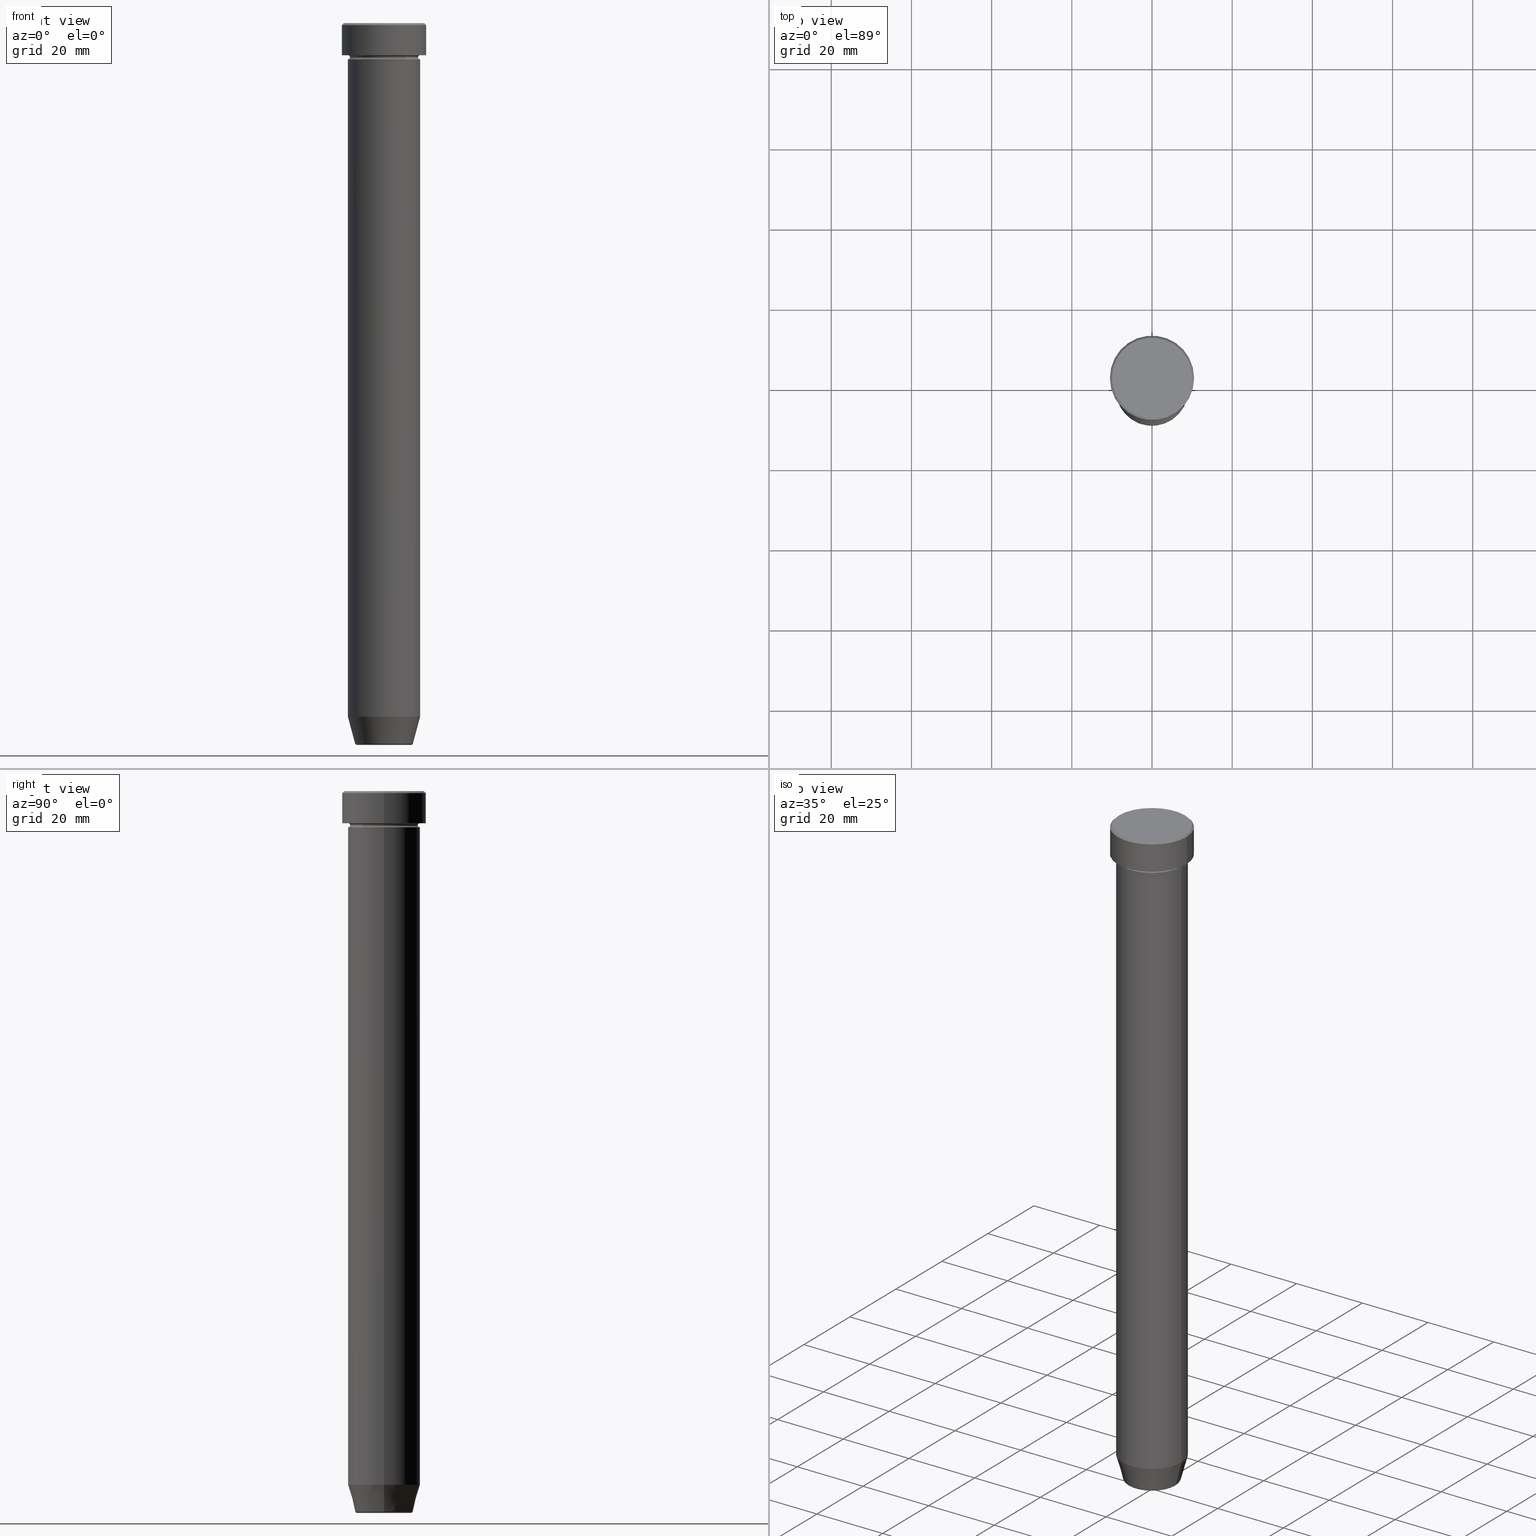
[diagram: canonical four-view strip — front | top / right | iso, engineering-drawing reading convention]
A machine part, canonical four-view strip (front | top / right | iso — engineering-drawing reading convention). The complete STEP part file that produces these views, byte-faithful:
ISO-10303-21;
HEADER;
FILE_DESCRIPTION (( 'STEP AP203' ),
    '1' );
FILE_NAME ('91e3.STEP',
    '2024-01-02T22:06:49',
    ( '' ),
    ( '' ),
    'SwSTEP 2.0',
    'SolidWorks 2019',
    '' );
FILE_SCHEMA (( 'CONFIG_CONTROL_DESIGN' ));
ENDSEC;

DATA;
#1 = DIRECTION ( 'NONE',  ( 1.000000000000000000, 0.000000000000000000, 0.000000000000000000 ) ) ;
#2 = ADVANCED_FACE ( 'NONE', ( #297, #351 ), #529, .T. ) ;
#3 = CARTESIAN_POINT ( 'NONE',  ( -9.000000000000000000, 1.102182119232617714E-15, 0.000000000000000000 ) ) ;
#4 = AXIS2_PLACEMENT_3D ( 'NONE', #62, #251, #572 ) ;
#5 = LINE ( 'NONE', #381, #137 ) ;
#6 = CIRCLE ( 'NONE', #543, 9.000000000000000000 ) ;
#7 = CIRCLE ( 'NONE', #123, 9.000000000000000000 ) ;
#8 = ORIENTED_EDGE ( 'NONE', *, *, #559, .T. ) ;
#9 = DIRECTION ( 'NONE',  ( 0.2588190451025210725, 0.000000000000000000, 0.9659258262890680902 ) ) ;
#10 = DIRECTION ( 'NONE',  ( -0.000000000000000000, -0.000000000000000000, 1.000000000000000000 ) ) ;
#11 = ORIENTED_EDGE ( 'NONE', *, *, #156, .T. ) ;
#12 = VERTEX_POINT ( 'NONE', #341 ) ;
#13 = CARTESIAN_POINT ( 'NONE',  ( 0.000000000000000000, 0.000000000000000000, -8.500000000000000000 ) ) ;
#14 = ORIENTED_EDGE ( 'NONE', *, *, #277, .F. ) ;
#15 = AXIS2_PLACEMENT_3D ( 'NONE', #329, #417, #228 ) ;
#16 = APPROVAL_PERSON_ORGANIZATION ( #19, #561, #579 ) ;
#17 = CARTESIAN_POINT ( 'NONE',  ( 0.000000000000000000, 0.000000000000000000, -173.0000000000000000 ) ) ;
#18 = ORIENTED_EDGE ( 'NONE', *, *, #135, .T. ) ;
#19 = PERSON_AND_ORGANIZATION ( #51, #366 ) ;
#20 = CARTESIAN_POINT ( 'NONE',  ( 0.000000000000000000, 0.000000000000000000, -179.6294095225512706 ) ) ;
#21 = EDGE_LOOP ( 'NONE', ( #230, #157, #581, #30 ) ) ;
#22 = APPLICATION_PROTOCOL_DEFINITION ( 'international standard', 'config_control_design', 1994, #520 ) ;
#23 = EDGE_CURVE ( 'NONE', #335, #136, #325, .T. ) ;
#24 = EDGE_LOOP ( 'NONE', ( #41, #34, #46, #152 ) ) ;
#25 = CARTESIAN_POINT ( 'NONE',  ( -9.000000000000000000, 1.102182119232617714E-15, -22.00000000000000000 ) ) ;
#26 = MANIFOLD_SOLID_BREP ( 'Zkosen�1', #398 ) ;
#27 = CIRCLE ( 'NONE', #265, 10.50000000000000000 ) ;
#28 = CIRCLE ( 'NONE', #224, 9.000000000000000000 ) ;
#29 = APPROVAL_DATE_TIME ( #124, #561 ) ;
#30 = ORIENTED_EDGE ( 'NONE', *, *, #576, .F. ) ;
#31 = DIRECTION ( 'NONE',  ( 0.000000000000000000, 0.000000000000000000, -1.000000000000000000 ) ) ;
#32 = DIRECTION ( 'NONE',  ( -0.000000000000000000, -0.000000000000000000, 1.000000000000000000 ) ) ;
#33 =( NAMED_UNIT ( * ) SI_UNIT ( $, .STERADIAN. ) SOLID_ANGLE_UNIT ( ) );
#34 = ORIENTED_EDGE ( 'NONE', *, *, #451, .T. ) ;
#35 = CARTESIAN_POINT ( 'NONE',  ( 9.000000000000000000, 0.000000000000000000, -9.000000000000001776 ) ) ;
#36 = CONICAL_SURFACE ( 'NONE', #456, 10.00000000000000178, 0.7853981633974447263 ) ;
#37 = CIRCLE ( 'NONE', #378, 7.223655072137189492 ) ;
#38 = SECURITY_CLASSIFICATION ( '', '', #586 ) ;
#39 = PLANE ( 'NONE',  #180 ) ;
#40 = AXIS2_PLACEMENT_3D ( 'NONE', #199, #486, #524 ) ;
#41 = ORIENTED_EDGE ( 'NONE', *, *, #23, .F. ) ;
#42 = DIRECTION ( 'NONE',  ( 0.000000000000000000, -0.000000000000000000, 1.000000000000000000 ) ) ;
#43 = CARTESIAN_POINT ( 'NONE',  ( 10.00000000000000178, 1.224646799147353454E-15, 0.000000000000000000 ) ) ;
#44 = EDGE_CURVE ( 'NONE', #229, #470, #293, .T. ) ;
#45 = ORIENTED_EDGE ( 'NONE', *, *, #263, .F. ) ;
#46 = ORIENTED_EDGE ( 'NONE', *, *, #517, .T. ) ;
#47 = VERTEX_POINT ( 'NONE', #384 ) ;
#48 = CARTESIAN_POINT ( 'NONE',  ( 0.000000000000000000, 0.000000000000000000, -22.00000000000000000 ) ) ;
#49 = AXIS2_PLACEMENT_3D ( 'NONE', #338, #515, #391 ) ;
#50 = APPROVAL ( #262, 'NEUR�EN�' ) ;
#51 = PERSON ( 'NEUR�EN�', 'NEUR�EN�', 'NEUR�EN�', ('NEUR�EN�'), ('NEUR�EN�'), ('NEUR�EN�') ) ;
#52 = DIRECTION ( 'NONE',  ( -0.000000000000000000, -0.000000000000000000, 1.000000000000000000 ) ) ;
#53 = ORIENTED_EDGE ( 'NONE', *, *, #347, .T. ) ;
#54 = DIRECTION ( 'NONE',  ( 1.000000000000000000, 0.000000000000000000, 0.000000000000000000 ) ) ;
#55 = CARTESIAN_POINT ( 'NONE',  ( 7.124355652982136355, 0.000000000000000000, -180.0000000000000000 ) ) ;
#56 = TOROIDAL_SURFACE ( 'NONE', #446, 9.000000000000000000, 0.5000000000000000000 ) ;
#57 = EDGE_LOOP ( 'NONE', ( #394, #109, #440, #235 ) ) ;
#58 = AXIS2_PLACEMENT_3D ( 'NONE', #256, #518, #292 ) ;
#59 = AXIS2_PLACEMENT_3D ( 'NONE', #154, #65, #345 ) ;
#60 = ORIENTED_EDGE ( 'NONE', *, *, #513, .T. ) ;
#61 = CARTESIAN_POINT ( 'NONE',  ( 10.50000000000000000, 0.000000000000000000, -8.000000000000000000 ) ) ;
#62 = CARTESIAN_POINT ( 'NONE',  ( 0.000000000000000000, 0.000000000000000000, -8.500000000000000000 ) ) ;
#63 = DIRECTION ( 'NONE',  ( 1.000000000000000000, 0.000000000000000000, 0.000000000000000000 ) ) ;
#64 = EDGE_CURVE ( 'NONE', #47, #161, #248, .T. ) ;
#65 = DIRECTION ( 'NONE',  ( -0.000000000000000000, -0.000000000000000000, 1.000000000000000000 ) ) ;
#66 = CARTESIAN_POINT ( 'NONE',  ( 0.000000000000000000, 0.000000000000000000, -9.000000000000001776 ) ) ;
#67 = ORIENTED_EDGE ( 'NONE', *, *, #423, .F. ) ;
#68 = AXIS2_PLACEMENT_3D ( 'NONE', #134, #233, #424 ) ;
#69 = AXIS2_PLACEMENT_3D ( 'NONE', #318, #497, #541 ) ;
#70 = ORIENTED_EDGE ( 'NONE', *, *, #238, .T. ) ;
#71 = CIRCLE ( 'NONE', #402, 8.499999999999998224 ) ;
#72 = CARTESIAN_POINT ( 'NONE',  ( 0.000000000000000000, 0.000000000000000000, 0.000000000000000000 ) ) ;
#73 = EDGE_CURVE ( 'NONE', #116, #117, #5, .T. ) ;
#74 = DATE_AND_TIME ( #314, #344 ) ;
#75 = DIRECTION ( 'NONE',  ( -0.000000000000000000, -0.000000000000000000, 1.000000000000000000 ) ) ;
#76 = PRODUCT_DEFINITION ( 'NEZN�M�', '', #181, #358 ) ;
#77 = APPROVAL_STATUS ( 'not_yet_approved' ) ;
#78 = DIRECTION ( 'NONE',  ( 0.000000000000000000, -0.000000000000000000, 1.000000000000000000 ) ) ;
#79 = AXIS2_PLACEMENT_3D ( 'NONE', #468, #42, #599 ) ;
#80 = CIRCLE ( 'NONE', #457, 9.000000000000000000 ) ;
#81 = DATE_TIME_ROLE ( 'classification_date' ) ;
#82 = CC_DESIGN_APPROVAL ( #50, ( #76 ) ) ;
#83 = DIRECTION ( 'NONE',  ( 0.000000000000000000, 0.000000000000000000, -1.000000000000000000 ) ) ;
#84 = DIRECTION ( 'NONE',  ( -0.2588190451025210725, 3.169619151431769255E-17, 0.9659258262890680902 ) ) ;
#85 = EDGE_CURVE ( 'NONE', #116, #12, #7, .T. ) ;
#86 = CARTESIAN_POINT ( 'NONE',  ( 9.000000000000000000, 0.000000000000000000, 0.000000000000000000 ) ) ;
#87 = CC_DESIGN_PERSON_AND_ORGANIZATION_ASSIGNMENT ( #397, #583, ( #181 ) ) ;
#88 = CIRCLE ( 'NONE', #426, 10.50000000000000000 ) ;
#89 = AXIS2_PLACEMENT_3D ( 'NONE', #523, #201, #389 ) ;
#90 = CARTESIAN_POINT ( 'NONE',  ( 0.000000000000000000, 0.000000000000000000, -22.00000000000000000 ) ) ;
#91 = AXIS2_PLACEMENT_3D ( 'NONE', #132, #448, #31 ) ;
#92 = APPLICATION_CONTEXT ( 'configuration controlled 3d designs of mechanical parts and assemblies' ) ;
#93 = ADVANCED_FACE ( 'NONE', ( #473 ), #217, .F. ) ;
#94 = CARTESIAN_POINT ( 'NONE',  ( 0.000000000000000000, 9.000000000000000000, -22.00000000000000000 ) ) ;
#95 = ORIENTED_EDGE ( 'NONE', *, *, #438, .T. ) ;
#96 = ORIENTED_EDGE ( 'NONE', *, *, #131, .F. ) ;
#97 = CARTESIAN_POINT ( 'NONE',  ( 0.000000000000000000, 0.000000000000000000, -22.00000000000000000 ) ) ;
#98 = ORIENTED_EDGE ( 'NONE', *, *, #567, .F. ) ;
#99 = CARTESIAN_POINT ( 'NONE',  ( 0.000000000000000000, 0.000000000000000000, -22.00000000000000000 ) ) ;
#100 = AXIS2_PLACEMENT_3D ( 'NONE', #48, #52, #370 ) ;
#101 = ADVANCED_FACE ( 'NONE', ( #111 ), #432, .T. ) ;
#102 = VERTEX_POINT ( 'NONE', #390 ) ;
#103 = ORIENTED_EDGE ( 'NONE', *, *, #277, .T. ) ;
#104 = ORIENTED_EDGE ( 'NONE', *, *, #328, .F. ) ;
#105 = CARTESIAN_POINT ( 'NONE',  ( -10.50000000000000000, 1.285879139104720831E-15, 0.000000000000000000 ) ) ;
#106 = CARTESIAN_POINT ( 'NONE',  ( 0.000000000000000000, 0.000000000000000000, 0.000000000000000000 ) ) ;
#107 = DIRECTION ( 'NONE',  ( 1.000000000000000000, 0.000000000000000000, 0.000000000000000000 ) ) ;
#108 = ORIENTED_EDGE ( 'NONE', *, *, #589, .T. ) ;
#109 = ORIENTED_EDGE ( 'NONE', *, *, #328, .T. ) ;
#110 = LINE ( 'NONE', #105, #564 ) ;
#111 = FACE_OUTER_BOUND ( 'NONE', #125, .T. ) ;
#112 = AXIS2_PLACEMENT_3D ( 'NONE', #106, #160, #198 ) ;
#113 = ADVANCED_FACE ( 'NONE', ( #115 ), #482, .T. ) ;
#114 = FACE_OUTER_BOUND ( 'NONE', #399, .T. ) ;
#115 = FACE_OUTER_BOUND ( 'NONE', #333, .T. ) ;
#116 = VERTEX_POINT ( 'NONE', #159 ) ;
#117 = VERTEX_POINT ( 'NONE', #575 ) ;
#118 = DIRECTION ( 'NONE',  ( -0.000000000000000000, -0.000000000000000000, 1.000000000000000000 ) ) ;
#119 = LINE ( 'NONE', #301, #535 ) ;
#120 = PERSON_AND_ORGANIZATION ( #51, #366 ) ;
#121 = ORIENTED_EDGE ( 'NONE', *, *, #371, .T. ) ;
#122 = VECTOR ( 'NONE', #9, 1000.000000000000114 ) ;
#123 = AXIS2_PLACEMENT_3D ( 'NONE', #349, #339, #107 ) ;
#124 = DATE_AND_TIME ( #352, #317 ) ;
#125 = EDGE_LOOP ( 'NONE', ( #527, #273, #67, #193 ) ) ;
#126 = CARTESIAN_POINT ( 'NONE',  ( 0.000000000000000000, 0.000000000000000000, -180.0000000000000000 ) ) ;
#127 = CC_DESIGN_PERSON_AND_ORGANIZATION_ASSIGNMENT ( #166, #218, ( #38 ) ) ;
#128 = FACE_OUTER_BOUND ( 'NONE', #210, .T. ) ;
#129 =( NAMED_UNIT ( * ) PLANE_ANGLE_UNIT ( ) SI_UNIT ( $, .RADIAN. ) );
#130 = CONICAL_SURFACE ( 'NONE', #465, 7.124355652982136355, 0.2617993877991497964 ) ;
#131 = EDGE_CURVE ( 'NONE', #259, #12, #119, .T. ) ;
#132 = CARTESIAN_POINT ( 'NONE',  ( 9.000000000000000000, 0.000000000000000000, -8.500000000000000000 ) ) ;
#133 = DIRECTION ( 'NONE',  ( -1.000000000000000000, -1.224646799147353454E-16, 0.000000000000000000 ) ) ;
#134 = CARTESIAN_POINT ( 'NONE',  ( 0.000000000000000000, 0.000000000000000000, -8.000000000000000000 ) ) ;
#135 = EDGE_CURVE ( 'NONE', #136, #211, #357, .T. ) ;
#136 = VERTEX_POINT ( 'NONE', #496 ) ;
#137 = VECTOR ( 'NONE', #150, 1000.000000000000000 ) ;
#138 = CIRCLE ( 'NONE', #475, 9.000000000000000000 ) ;
#139 = FACE_OUTER_BOUND ( 'NONE', #511, .T. ) ;
#140 = CIRCLE ( 'NONE', #477, 7.223655072137189492 ) ;
#141 = ORIENTED_EDGE ( 'NONE', *, *, #227, .F. ) ;
#142 = ORIENTED_EDGE ( 'NONE', *, *, #64, .T. ) ;
#143 = DIRECTION ( 'NONE',  ( -0.000000000000000000, -0.000000000000000000, 1.000000000000000000 ) ) ;
#144 = DIRECTION ( 'NONE',  ( 0.7071067811865450192, 8.659560562354902043E-17, -0.7071067811865500152 ) ) ;
#145 = DIRECTION ( 'NONE',  ( -1.000000000000000000, 0.000000000000000000, 0.000000000000000000 ) ) ;
#146 = CONICAL_SURFACE ( 'NONE', #316, 7.124355652982136355, 0.2617993877991497964 ) ;
#147 = DIRECTION ( 'NONE',  ( -0.000000000000000000, -0.000000000000000000, 1.000000000000000000 ) ) ;
#148 = VERTEX_POINT ( 'NONE', #268 ) ;
#149 = DIRECTION ( 'NONE',  ( -0.000000000000000000, -1.000000000000000000, -0.000000000000000000 ) ) ;
#150 = DIRECTION ( 'NONE',  ( -0.000000000000000000, -0.000000000000000000, 1.000000000000000000 ) ) ;
#151 = EDGE_CURVE ( 'NONE', #136, #335, #71, .T. ) ;
#152 = ORIENTED_EDGE ( 'NONE', *, *, #135, .F. ) ;
#153 = DIRECTION ( 'NONE',  ( -0.000000000000000000, -0.000000000000000000, 1.000000000000000000 ) ) ;
#154 = CARTESIAN_POINT ( 'NONE',  ( 0.000000000000000000, 0.000000000000000000, 0.000000000000000000 ) ) ;
#155 = TOROIDAL_SURFACE ( 'NONE', #278, 9.000000000000000000, 0.5000000000000000000 ) ;
#156 = EDGE_CURVE ( 'NONE', #102, #148, #353, .T. ) ;
#157 = ORIENTED_EDGE ( 'NONE', *, *, #272, .T. ) ;
#158 = CYLINDRICAL_SURFACE ( 'NONE', #112, 9.000000000000000000 ) ;
#159 = CARTESIAN_POINT ( 'NONE',  ( 9.000000000000000000, 0.000000000000000000, -173.0000000000000000 ) ) ;
#160 = DIRECTION ( 'NONE',  ( -0.000000000000000000, -0.000000000000000000, 1.000000000000000000 ) ) ;
#161 = VERTEX_POINT ( 'NONE', #170 ) ;
#162 = CARTESIAN_POINT ( 'NONE',  ( 0.000000000000000000, 0.000000000000000000, 0.000000000000000000 ) ) ;
#163 = CIRCLE ( 'NONE', #503, 6.740692158992659166 ) ;
#164 = AXIS2_PLACEMENT_3D ( 'NONE', #206, #310, #406 ) ;
#165 = EDGE_LOOP ( 'NONE', ( #285, #53, #103, #205 ) ) ;
#166 = PERSON_AND_ORGANIZATION ( #51, #366 ) ;
#167 = CARTESIAN_POINT ( 'NONE',  ( 0.000000000000000000, 0.000000000000000000, 0.000000000000000000 ) ) ;
#168 = ORIENTED_EDGE ( 'NONE', *, *, #589, .F. ) ;
#169 = CALENDAR_DATE ( 2024, 2, 1 ) ;
#170 = CARTESIAN_POINT ( 'NONE',  ( 10.00000000000000178, 1.255262969126037241E-15, 0.000000000000000000 ) ) ;
#171 = AXIS2_PLACEMENT_3D ( 'NONE', #595, #375, #231 ) ;
#172 = APPROVAL_DATE_TIME ( #74, #50 ) ;
#173 = ORIENTED_EDGE ( 'NONE', *, *, #151, .T. ) ;
#174 = CARTESIAN_POINT ( 'NONE',  ( 9.000000000000000000, 1.102182119232617714E-15, -8.500000000000000000 ) ) ;
#175 = CARTESIAN_POINT ( 'NONE',  ( 9.000000000000000000, 0.000000000000000000, -22.00000000000000000 ) ) ;
#176 = ADVANCED_FACE ( 'NONE', ( #312 ), #395, .T. ) ;
#177 = DIRECTION ( 'NONE',  ( 0.000000000000000000, 0.000000000000000000, -1.000000000000000000 ) ) ;
#178 = AXIS2_PLACEMENT_3D ( 'NONE', #72, #386, #258 ) ;
#179 = EDGE_LOOP ( 'NONE', ( #257, #376, #558, #14 ) ) ;
#180 = AXIS2_PLACEMENT_3D ( 'NONE', #90, #177, #505 ) ;
#181 = PRODUCT_DEFINITION_FORMATION_WITH_SPECIFIED_SOURCE ( 'LIBOVOLN�', '', #405, .NOT_KNOWN. ) ;
#182 = CARTESIAN_POINT ( 'NONE',  ( 0.000000000000000000, 0.000000000000000000, -8.000000000000000000 ) ) ;
#183 = VERTEX_POINT ( 'NONE', #214 ) ;
#184 = CALENDAR_DATE ( 2024, 2, 1 ) ;
#185 = CARTESIAN_POINT ( 'NONE',  ( -9.000000000000000000, 1.102182119232617714E-15, -22.00000000000000000 ) ) ;
#186 = EDGE_CURVE ( 'NONE', #259, #274, #140, .T. ) ;
#187 = ORIENTED_EDGE ( 'NONE', *, *, #451, .F. ) ;
#188 = DIRECTION ( 'NONE',  ( 0.000000000000000000, 0.000000000000000000, -1.000000000000000000 ) ) ;
#189 = ADVANCED_FACE ( 'NONE', ( #546 ), #322, .T. ) ;
#190 = VECTOR ( 'NONE', #453, 1000.000000000000000 ) ;
#191 = DIRECTION ( 'NONE',  ( -0.000000000000000000, -0.000000000000000000, 1.000000000000000000 ) ) ;
#192 = CIRCLE ( 'NONE', #531, 0.5000000000000004441 ) ;
#193 = ORIENTED_EDGE ( 'NONE', *, *, #73, .F. ) ;
#194 = ORIENTED_EDGE ( 'NONE', *, *, #408, .T. ) ;
#195 = DIRECTION ( 'NONE',  ( 1.224646799147353207E-16, 1.000000000000000000, 0.000000000000000000 ) ) ;
#196 = ADVANCED_FACE ( 'NONE', ( #441 ), #36, .T. ) ;
#197 = EDGE_LOOP ( 'NONE', ( #96, #463, #8, #98 ) ) ;
#198 = DIRECTION ( 'NONE',  ( 1.000000000000000000, 0.000000000000000000, 0.000000000000000000 ) ) ;
#199 = CARTESIAN_POINT ( 'NONE',  ( 0.000000000000000000, 10.50000000000000000, -8.000000000000000000 ) ) ;
#200 = ORIENTED_EDGE ( 'NONE', *, *, #513, .F. ) ;
#201 = DIRECTION ( 'NONE',  ( 1.224646799147353207E-16, 1.000000000000000000, 0.000000000000000000 ) ) ;
#202 = DIRECTION ( 'NONE',  ( 1.000000000000000000, 0.000000000000000000, 0.000000000000000000 ) ) ;
#203 = ADVANCED_FACE ( 'NONE', ( #404 ), #56, .F. ) ;
#204 = DIRECTION ( 'NONE',  ( -1.000000000000000000, 1.224646799147353454E-16, 0.000000000000000000 ) ) ;
#205 = ORIENTED_EDGE ( 'NONE', *, *, #517, .F. ) ;
#206 = CARTESIAN_POINT ( 'NONE',  ( 0.000000000000000000, 0.000000000000000000, -179.5000000000000000 ) ) ;
#207 = DIRECTION ( 'NONE',  ( -1.000000000000000000, 0.000000000000000000, 0.000000000000000000 ) ) ;
#208 = ORIENTED_EDGE ( 'NONE', *, *, #371, .F. ) ;
#209 = UNCERTAINTY_MEASURE_WITH_UNIT (LENGTH_MEASURE( 1.000000000000000082E-05 ), #306, 'distance_accuracy_value', 'NONE');
#210 = EDGE_LOOP ( 'NONE', ( #537, #173, #540, #382 ) ) ;
#211 = VERTEX_POINT ( 'NONE', #35 ) ;
#212 = PERSON_AND_ORGANIZATION ( #51, #366 ) ;
#213 = EDGE_LOOP ( 'NONE', ( #104, #321, #514, #208 ) ) ;
#214 = CARTESIAN_POINT ( 'NONE',  ( -10.50000000000000000, 1.285879139104720831E-15, -8.000000000000000000 ) ) ;
#215 = TOROIDAL_SURFACE ( 'NONE', #372, 9.000000000000000000, 0.5000000000000000000 ) ;
#216 = CIRCLE ( 'NONE', #234, 0.5000000000000004441 ) ;
#217 = TOROIDAL_SURFACE ( 'NONE', #4, 9.000000000000000000, 0.5000000000000000000 ) ;
#218 = PERSON_AND_ORGANIZATION_ROLE ( 'classification_officer' ) ;
#219 = DIRECTION ( 'NONE',  ( -0.000000000000000000, -0.000000000000000000, 1.000000000000000000 ) ) ;
#220 = PRODUCT_DEFINITION_SHAPE ( 'NONE', 'NONE',  #76 ) ;
#221 = APPROVAL_ROLE ( '' ) ;
#222 = CARTESIAN_POINT ( 'NONE',  ( 0.000000000000000000, 0.000000000000000000, -0.5000000000000023315 ) ) ;
#223 = DIRECTION ( 'NONE',  ( 1.000000000000000000, 0.000000000000000000, 0.000000000000000000 ) ) ;
#224 = AXIS2_PLACEMENT_3D ( 'NONE', #245, #153, #249 ) ;
#225 = CC_DESIGN_SECURITY_CLASSIFICATION ( #38, ( #181 ) ) ;
#226 = MANIFOLD_SOLID_BREP ( 'Zaoblit4', #582 ) ;
#227 = EDGE_CURVE ( 'NONE', #556, #416, #409, .T. ) ;
#228 = DIRECTION ( 'NONE',  ( -1.000000000000000000, 0.000000000000000000, 0.000000000000000000 ) ) ;
#229 = VERTEX_POINT ( 'NONE', #25 ) ;
#230 = ORIENTED_EDGE ( 'NONE', *, *, #23, .T. ) ;
#231 = DIRECTION ( 'NONE',  ( 0.000000000000000000, 0.000000000000000000, -1.000000000000000000 ) ) ;
#232 = ORIENTED_EDGE ( 'NONE', *, *, #567, .T. ) ;
#233 = DIRECTION ( 'NONE',  ( -0.000000000000000000, -0.000000000000000000, 1.000000000000000000 ) ) ;
#234 = AXIS2_PLACEMENT_3D ( 'NONE', #336, #195, #204 ) ;
#235 = ORIENTED_EDGE ( 'NONE', *, *, #291, .F. ) ;
#236 = EDGE_LOOP ( 'NONE', ( #241, #60, #70, #141 ) ) ;
#237 = FACE_OUTER_BOUND ( 'NONE', #270, .T. ) ;
#238 = EDGE_CURVE ( 'NONE', #392, #416, #88, .T. ) ;
#239 = CARTESIAN_POINT ( 'NONE',  ( -9.000000000000000000, 0.000000000000000000, -8.000000000000000000 ) ) ;
#240 = ORIENTED_EDGE ( 'NONE', *, *, #227, .T. ) ;
#241 = ORIENTED_EDGE ( 'NONE', *, *, #288, .T. ) ;
#242 = DIRECTION ( 'NONE',  ( 1.000000000000000000, 0.000000000000000000, 0.000000000000000000 ) ) ;
#243 = EDGE_CURVE ( 'NONE', #307, #117, #276, .T. ) ;
#244 = CIRCLE ( 'NONE', #474, 0.5000000000000004441 ) ;
#245 = CARTESIAN_POINT ( 'NONE',  ( 0.000000000000000000, 0.000000000000000000, -9.000000000000001776 ) ) ;
#246 = CIRCLE ( 'NONE', #100, 9.000000000000000000 ) ;
#247 = ORIENTED_EDGE ( 'NONE', *, *, #509, .F. ) ;
#248 = CIRCLE ( 'NONE', #178, 10.00000000000000178 ) ;
#249 = DIRECTION ( 'NONE',  ( 1.000000000000000000, 0.000000000000000000, 0.000000000000000000 ) ) ;
#250 = CC_DESIGN_PERSON_AND_ORGANIZATION_ASSIGNMENT ( #212, #260, ( #181 ) ) ;
#251 = DIRECTION ( 'NONE',  ( -0.000000000000000000, -0.000000000000000000, 1.000000000000000000 ) ) ;
#252 = ADVANCED_BREP_SHAPE_REPRESENTATION ( '91e3', ( #26, #226, #69 ), #266 ) ;
#253 = ORIENTED_EDGE ( 'NONE', *, *, #243, .F. ) ;
#254 = DIRECTION ( 'NONE',  ( -0.000000000000000000, -0.000000000000000000, 1.000000000000000000 ) ) ;
#255 = CARTESIAN_POINT ( 'NONE',  ( 0.000000000000000000, 0.000000000000000000, 0.000000000000000000 ) ) ;
#256 = CARTESIAN_POINT ( 'NONE',  ( 0.000000000000000000, 0.000000000000000000, 0.000000000000000000 ) ) ;
#257 = ORIENTED_EDGE ( 'NONE', *, *, #431, .T. ) ;
#258 = DIRECTION ( 'NONE',  ( 1.000000000000000000, 0.000000000000000000, 0.000000000000000000 ) ) ;
#259 = VERTEX_POINT ( 'NONE', #360 ) ;
#260 = PERSON_AND_ORGANIZATION_ROLE ( 'creator' ) ;
#261 = DIRECTION ( 'NONE',  ( -1.000000000000000000, 0.000000000000000000, 0.000000000000000000 ) ) ;
#262 = APPROVAL_STATUS ( 'not_yet_approved' ) ;
#263 = EDGE_CURVE ( 'NONE', #148, #102, #163, .T. ) ;
#264 = DIRECTION ( 'NONE',  ( 1.000000000000000000, 0.000000000000000000, 0.000000000000000000 ) ) ;
#265 = AXIS2_PLACEMENT_3D ( 'NONE', #364, #422, #552 ) ;
#266 =( GEOMETRIC_REPRESENTATION_CONTEXT ( 3 ) GLOBAL_UNCERTAINTY_ASSIGNED_CONTEXT ( ( #209 ) ) GLOBAL_UNIT_ASSIGNED_CONTEXT ( ( #306, #129, #33 ) ) REPRESENTATION_CONTEXT ( 'NONE', 'WORKASPACE' ) );
#267 = PERSON_AND_ORGANIZATION ( #51, #366 ) ;
#268 = CARTESIAN_POINT ( 'NONE',  ( -6.740692158992659166, 8.550696569392685681E-16, -180.0000000000000000 ) ) ;
#269 = PERSON_AND_ORGANIZATION_ROLE ( 'design_owner' ) ;
#270 = EDGE_LOOP ( 'NONE', ( #281, #361 ) ) ;
#271 = DIRECTION ( 'NONE',  ( 0.000000000000000000, 0.000000000000000000, -1.000000000000000000 ) ) ;
#272 = EDGE_CURVE ( 'NONE', #136, #311, #244, .T. ) ;
#273 = ORIENTED_EDGE ( 'NONE', *, *, #509, .T. ) ;
#274 = VERTEX_POINT ( 'NONE', #588 ) ;
#275 = LINE ( 'NONE', #43, #410 ) ;
#276 = CIRCLE ( 'NONE', #553, 9.000000000000000000 ) ;
#277 = EDGE_CURVE ( 'NONE', #387, #211, #539, .T. ) ;
#278 = AXIS2_PLACEMENT_3D ( 'NONE', #13, #254, #433 ) ;
#279 = LINE ( 'NONE', #413, #597 ) ;
#280 = CARTESIAN_POINT ( 'NONE',  ( 9.000000000000000000, 1.102182119232617714E-15, -8.000000000000000000 ) ) ;
#281 = ORIENTED_EDGE ( 'NONE', *, *, #431, .F. ) ;
#282 = DIRECTION ( 'NONE',  ( -0.000000000000000000, -0.000000000000000000, 1.000000000000000000 ) ) ;
#283 = ADVANCED_FACE ( 'NONE', ( #128 ), #215, .F. ) ;
#284 = AXIS2_PLACEMENT_3D ( 'NONE', #566, #350, #348 ) ;
#285 = ORIENTED_EDGE ( 'NONE', *, *, #44, .F. ) ;
#286 = APPROVAL_PERSON_ORGANIZATION ( #452, #50, #528 ) ;
#287 = DIRECTION ( 'NONE',  ( -0.000000000000000000, -0.000000000000000000, 1.000000000000000000 ) ) ;
#288 = EDGE_CURVE ( 'NONE', #556, #183, #27, .T. ) ;
#289 = EDGE_LOOP ( 'NONE', ( #142, #415 ) ) ;
#290 = FACE_OUTER_BOUND ( 'NONE', #197, .T. ) ;
#291 = EDGE_CURVE ( 'NONE', #47, #392, #279, .T. ) ;
#292 = DIRECTION ( 'NONE',  ( 1.000000000000000000, 0.000000000000000000, 0.000000000000000000 ) ) ;
#293 = LINE ( 'NONE', #516, #342 ) ;
#294 = AXIS2_PLACEMENT_3D ( 'NONE', #255, #434, #202 ) ;
#295 = DIRECTION ( 'NONE',  ( -0.000000000000000000, -0.000000000000000000, 1.000000000000000000 ) ) ;
#296 = AXIS2_PLACEMENT_3D ( 'NONE', #377, #563, #145 ) ;
#297 = FACE_BOUND ( 'NONE', #578, .T. ) ;
#298 = ORIENTED_EDGE ( 'NONE', *, *, #367, .T. ) ;
#299 = FACE_OUTER_BOUND ( 'NONE', #532, .T. ) ;
#300 = ORIENTED_EDGE ( 'NONE', *, *, #320, .F. ) ;
#301 = CARTESIAN_POINT ( 'NONE',  ( -7.124355652982136355, 8.724819346411924116E-16, -180.0000000000000000 ) ) ;
#302 = CALENDAR_DATE ( 2024, 2, 1 ) ;
#303 = CIRCLE ( 'NONE', #58, 10.00000000000000178 ) ;
#304 = ORIENTED_EDGE ( 'NONE', *, *, #243, .T. ) ;
#305 = AXIS2_PLACEMENT_3D ( 'NONE', #542, #78, #223 ) ;
#306 =( LENGTH_UNIT ( ) NAMED_UNIT ( * ) SI_UNIT ( .MILLI., .METRE. ) );
#307 = VERTEX_POINT ( 'NONE', #185 ) ;
#308 = DIRECTION ( 'NONE',  ( 1.000000000000000000, 0.000000000000000000, 0.000000000000000000 ) ) ;
#309 = ADVANCED_FACE ( 'NONE', ( #139 ), #464, .F. ) ;
#310 = DIRECTION ( 'NONE',  ( -0.000000000000000000, -0.000000000000000000, 1.000000000000000000 ) ) ;
#311 = VERTEX_POINT ( 'NONE', #280 ) ;
#312 = FACE_OUTER_BOUND ( 'NONE', #462, .T. ) ;
#313 = ADVANCED_FACE ( 'NONE', ( #461 ), #510, .T. ) ;
#314 = CALENDAR_DATE ( 2024, 2, 1 ) ;
#315 = CARTESIAN_POINT ( 'NONE',  ( 0.000000000000000000, 0.000000000000000000, -22.00000000000000000 ) ) ;
#316 = AXIS2_PLACEMENT_3D ( 'NONE', #340, #428, #242 ) ;
#317 = LOCAL_TIME ( 23, 6, 49.00000000000000000, #445 ) ;
#318 = CARTESIAN_POINT ( 'NONE',  ( 0.000000000000000000, 0.000000000000000000, 0.000000000000000000 ) ) ;
#319 = DIRECTION ( 'NONE',  ( 0.000000000000000000, 0.000000000000000000, -1.000000000000000000 ) ) ;
#320 = EDGE_CURVE ( 'NONE', #102, #274, #365, .T. ) ;
#321 = ORIENTED_EDGE ( 'NONE', *, *, #64, .F. ) ;
#322 = PLANE ( 'NONE',  #305 ) ;
#323 = CARTESIAN_POINT ( 'NONE',  ( 0.000000000000000000, 0.000000000000000000, -0.5000000000000023315 ) ) ;
#324 = ORIENTED_EDGE ( 'NONE', *, *, #559, .F. ) ;
#325 = CIRCLE ( 'NONE', #379, 8.499999999999998224 ) ;
#326 = ORIENTED_EDGE ( 'NONE', *, *, #423, .T. ) ;
#327 = PLANE ( 'NONE',  #591 ) ;
#328 = EDGE_CURVE ( 'NONE', #161, #416, #275, .T. ) ;
#329 = CARTESIAN_POINT ( 'NONE',  ( 0.000000000000000000, 0.000000000000000000, 0.000000000000000000 ) ) ;
#330 = APPROVAL_DATE_TIME ( #550, #442 ) ;
#331 = PRODUCT_RELATED_PRODUCT_CATEGORY ( 'detail', '', ( #405 ) ) ;
#332 = DIRECTION ( 'NONE',  ( -1.000000000000000000, 0.000000000000000000, 0.000000000000000000 ) ) ;
#333 = EDGE_LOOP ( 'NONE', ( #200, #298, #240, #121 ) ) ;
#334 = CIRCLE ( 'NONE', #68, 10.50000000000000000 ) ;
#335 = VERTEX_POINT ( 'NONE', #459 ) ;
#336 = CARTESIAN_POINT ( 'NONE',  ( -9.000000000000000000, 1.102182119232617714E-15, -8.500000000000000000 ) ) ;
#337 = ADVANCED_FACE ( 'NONE', ( #455 ), #39, .F. ) ;
#338 = CARTESIAN_POINT ( 'NONE',  ( 0.000000000000000000, 0.000000000000000000, -179.5000000000000000 ) ) ;
#339 = DIRECTION ( 'NONE',  ( -0.000000000000000000, -0.000000000000000000, 1.000000000000000000 ) ) ;
#340 = CARTESIAN_POINT ( 'NONE',  ( 0.000000000000000000, 0.000000000000000000, -180.0000000000000000 ) ) ;
#341 = CARTESIAN_POINT ( 'NONE',  ( -9.000000000000000000, 1.102182119232617714E-15, -173.0000000000000000 ) ) ;
#342 = VECTOR ( 'NONE', #484, 1000.000000000000000 ) ;
#343 = AXIS2_PLACEMENT_3D ( 'NONE', #97, #282, #508 ) ;
#344 = LOCAL_TIME ( 23, 6, 49.00000000000000000, #590 ) ;
#345 = DIRECTION ( 'NONE',  ( 1.000000000000000000, 0.000000000000000000, 0.000000000000000000 ) ) ;
#346 = ORIENTED_EDGE ( 'NONE', *, *, #151, .F. ) ;
#347 = EDGE_CURVE ( 'NONE', #229, #387, #246, .T. ) ;
#348 = DIRECTION ( 'NONE',  ( 1.000000000000000000, 0.000000000000000000, 0.000000000000000000 ) ) ;
#349 = CARTESIAN_POINT ( 'NONE',  ( 0.000000000000000000, 0.000000000000000000, -173.0000000000000000 ) ) ;
#350 = DIRECTION ( 'NONE',  ( -0.000000000000000000, -0.000000000000000000, 1.000000000000000000 ) ) ;
#351 = FACE_OUTER_BOUND ( 'NONE', #507, .T. ) ;
#352 = CALENDAR_DATE ( 2024, 2, 1 ) ;
#353 = CIRCLE ( 'NONE', #411, 6.740692158992659166 ) ;
#354 = CIRCLE ( 'NONE', #89, 0.5000000000000004441 ) ;
#355 = DIRECTION ( 'NONE',  ( 0.000000000000000000, 0.000000000000000000, -1.000000000000000000 ) ) ;
#356 = ADVANCED_FACE ( 'NONE', ( #237 ), #327, .T. ) ;
#357 = CIRCLE ( 'NONE', #91, 0.5000000000000004441 ) ;
#358 = DESIGN_CONTEXT ( 'detailed design', #520, 'design' ) ;
#359 = EDGE_LOOP ( 'NONE', ( #187, #346, #18, #467 ) ) ;
#360 = CARTESIAN_POINT ( 'NONE',  ( -7.223655072137189492, 9.934123627281763137E-16, -179.6294095225512706 ) ) ;
#361 = ORIENTED_EDGE ( 'NONE', *, *, #347, .F. ) ;
#362 = DATE_AND_TIME ( #169, #534 ) ;
#363 = DIRECTION ( 'NONE',  ( -0.000000000000000000, -0.000000000000000000, 1.000000000000000000 ) ) ;
#364 = CARTESIAN_POINT ( 'NONE',  ( 0.000000000000000000, 0.000000000000000000, -8.000000000000000000 ) ) ;
#365 = CIRCLE ( 'NONE', #171, 0.5000000000000004441 ) ;
#366 = ORGANIZATION ( 'NEUR�EN�', 'NEUR�EN�', '' ) ;
#367 = EDGE_CURVE ( 'NONE', #183, #556, #334, .T. ) ;
#368 = DIRECTION ( 'NONE',  ( 0.000000000000000000, 0.000000000000000000, -1.000000000000000000 ) ) ;
#369 = DIRECTION ( 'NONE',  ( -0.7071067811865450192, 0.000000000000000000, -0.7071067811865500152 ) ) ;
#370 = DIRECTION ( 'NONE',  ( 1.000000000000000000, 0.000000000000000000, 0.000000000000000000 ) ) ;
#371 = EDGE_CURVE ( 'NONE', #416, #392, #427, .T. ) ;
#372 = AXIS2_PLACEMENT_3D ( 'NONE', #544, #319, #498 ) ;
#373 = DIRECTION ( 'NONE',  ( -0.000000000000000000, -0.000000000000000000, 1.000000000000000000 ) ) ;
#374 = ORIENTED_EDGE ( 'NONE', *, *, #73, .T. ) ;
#375 = DIRECTION ( 'NONE',  ( 0.000000000000000000, -1.000000000000000000, 0.000000000000000000 ) ) ;
#376 = ORIENTED_EDGE ( 'NONE', *, *, #44, .T. ) ;
#377 = CARTESIAN_POINT ( 'NONE',  ( 0.000000000000000000, 0.000000000000000000, -8.000000000000000000 ) ) ;
#378 = AXIS2_PLACEMENT_3D ( 'NONE', #472, #478, #436 ) ;
#379 = AXIS2_PLACEMENT_3D ( 'NONE', #437, #10, #479 ) ;
#380 = LINE ( 'NONE', #3, #420 ) ;
#381 = CARTESIAN_POINT ( 'NONE',  ( 9.000000000000000000, 0.000000000000000000, 0.000000000000000000 ) ) ;
#382 = ORIENTED_EDGE ( 'NONE', *, *, #408, .F. ) ;
#383 = FACE_OUTER_BOUND ( 'NONE', #165, .T. ) ;
#384 = CARTESIAN_POINT ( 'NONE',  ( -10.00000000000000178, 0.000000000000000000, 0.000000000000000000 ) ) ;
#385 = DIRECTION ( 'NONE',  ( 0.000000000000000000, 0.000000000000000000, -1.000000000000000000 ) ) ;
#386 = DIRECTION ( 'NONE',  ( -0.000000000000000000, -0.000000000000000000, 1.000000000000000000 ) ) ;
#387 = VERTEX_POINT ( 'NONE', #175 ) ;
#388 = CIRCLE ( 'NONE', #296, 9.000000000000000000 ) ;
#389 = DIRECTION ( 'NONE',  ( -1.000000000000000000, 1.224646799147353454E-16, 0.000000000000000000 ) ) ;
#390 = CARTESIAN_POINT ( 'NONE',  ( 6.740692158992659166, 0.000000000000000000, -180.0000000000000000 ) ) ;
#391 = DIRECTION ( 'NONE',  ( 1.000000000000000000, 0.000000000000000000, 0.000000000000000000 ) ) ;
#392 = VERTEX_POINT ( 'NONE', #560 ) ;
#393 = PERSON_AND_ORGANIZATION_ROLE ( 'creator' ) ;
#394 = ORIENTED_EDGE ( 'NONE', *, *, #521, .F. ) ;
#395 = CYLINDRICAL_SURFACE ( 'NONE', #555, 9.000000000000000000 ) ;
#396 = ORIENTED_EDGE ( 'NONE', *, *, #263, .T. ) ;
#397 = PERSON_AND_ORGANIZATION ( #51, #366 ) ;
#398 = CLOSED_SHELL ( 'NONE', ( #196, #203, #585, #485, #414, #356, #189, #113, #2, #501, #93, #283, #313 ) ) ;
#399 = EDGE_LOOP ( 'NONE', ( #499, #421, #565, #324 ) ) ;
#400 = CIRCLE ( 'NONE', #343, 9.000000000000000000 ) ;
#401 = DIRECTION ( 'NONE',  ( 1.000000000000000000, 0.000000000000000000, 0.000000000000000000 ) ) ;
#402 = AXIS2_PLACEMENT_3D ( 'NONE', #580, #32, #584 ) ;
#403 = COORDINATED_UNIVERSAL_TIME_OFFSET ( 1, 0, .AHEAD. ) ;
#404 = FACE_OUTER_BOUND ( 'NONE', #21, .T. ) ;
#405 = PRODUCT ( '91e3', '91e3', '', ( #488 ) ) ;
#406 = DIRECTION ( 'NONE',  ( 1.000000000000000000, 0.000000000000000000, 0.000000000000000000 ) ) ;
#407 = DIRECTION ( 'NONE',  ( 0.000000000000000000, 0.000000000000000000, -1.000000000000000000 ) ) ;
#408 = EDGE_CURVE ( 'NONE', #311, #429, #138, .T. ) ;
#409 = LINE ( 'NONE', #450, #190 ) ;
#410 = VECTOR ( 'NONE', #144, 1000.000000000000000 ) ;
#411 = AXIS2_PLACEMENT_3D ( 'NONE', #490, #368, #401 ) ;
#412 = DIRECTION ( 'NONE',  ( -1.000000000000000000, 0.000000000000000000, -0.000000000000000000 ) ) ;
#413 = CARTESIAN_POINT ( 'NONE',  ( -10.00000000000000178, 0.000000000000000000, 0.000000000000000000 ) ) ;
#414 = ADVANCED_FACE ( 'NONE', ( #594 ), #557, .T. ) ;
#415 = ORIENTED_EDGE ( 'NONE', *, *, #521, .T. ) ;
#416 = VERTEX_POINT ( 'NONE', #548 ) ;
#417 = DIRECTION ( 'NONE',  ( 0.000000000000000000, 0.000000000000000000, -1.000000000000000000 ) ) ;
#418 = CC_DESIGN_PERSON_AND_ORGANIZATION_ASSIGNMENT ( #120, #393, ( #76 ) ) ;
#419 = AXIS2_PLACEMENT_3D ( 'NONE', #323, #188, #596 ) ;
#420 = VECTOR ( 'NONE', #574, 1000.000000000000000 ) ;
#421 = ORIENTED_EDGE ( 'NONE', *, *, #131, .T. ) ;
#422 = DIRECTION ( 'NONE',  ( -0.000000000000000000, -0.000000000000000000, 1.000000000000000000 ) ) ;
#423 = EDGE_CURVE ( 'NONE', #117, #307, #400, .T. ) ;
#424 = DIRECTION ( 'NONE',  ( 1.000000000000000000, 0.000000000000000000, 0.000000000000000000 ) ) ;
#425 = CARTESIAN_POINT ( 'NONE',  ( -9.000000000000000000, 1.102182119232617714E-15, -9.000000000000001776 ) ) ;
#426 = AXIS2_PLACEMENT_3D ( 'NONE', #222, #355, #264 ) ;
#427 = CIRCLE ( 'NONE', #419, 10.50000000000000000 ) ;
#428 = DIRECTION ( 'NONE',  ( -0.000000000000000000, -0.000000000000000000, 1.000000000000000000 ) ) ;
#429 = VERTEX_POINT ( 'NONE', #239 ) ;
#430 = CARTESIAN_POINT ( 'NONE',  ( -9.000000000000000000, 0.000000000000000000, -8.500000000000000000 ) ) ;
#431 = EDGE_CURVE ( 'NONE', #387, #229, #494, .T. ) ;
#432 = CYLINDRICAL_SURFACE ( 'NONE', #59, 9.000000000000000000 ) ;
#433 = DIRECTION ( 'NONE',  ( 1.000000000000000000, 0.000000000000000000, 0.000000000000000000 ) ) ;
#434 = DIRECTION ( 'NONE',  ( -0.000000000000000000, -0.000000000000000000, 1.000000000000000000 ) ) ;
#435 = AXIS2_PLACEMENT_3D ( 'NONE', #99, #287, #1 ) ;
#436 = DIRECTION ( 'NONE',  ( -1.000000000000000000, 0.000000000000000000, 0.000000000000000000 ) ) ;
#437 = CARTESIAN_POINT ( 'NONE',  ( 0.000000000000000000, 0.000000000000000000, -8.500000000000000000 ) ) ;
#438 = EDGE_CURVE ( 'NONE', #429, #311, #388, .T. ) ;
#439 = DATE_AND_TIME ( #302, #592 ) ;
#440 = ORIENTED_EDGE ( 'NONE', *, *, #238, .F. ) ;
#441 = FACE_OUTER_BOUND ( 'NONE', #57, .T. ) ;
#442 = APPROVAL ( #449, 'NEUR�EN�' ) ;
#443 = ORIENTED_EDGE ( 'NONE', *, *, #320, .T. ) ;
#444 = DIRECTION ( 'NONE',  ( -1.000000000000000000, 0.000000000000000000, 0.000000000000000000 ) ) ;
#445 = COORDINATED_UNIVERSAL_TIME_OFFSET ( 1, 0, .AHEAD. ) ;
#446 = AXIS2_PLACEMENT_3D ( 'NONE', #492, #271, #261 ) ;
#447 = TOROIDAL_SURFACE ( 'NONE', #164, 6.740692158992659166, 0.5000000000000000000 ) ;
#448 = DIRECTION ( 'NONE',  ( 0.000000000000000000, -1.000000000000000000, 0.000000000000000000 ) ) ;
#449 = APPROVAL_STATUS ( 'not_yet_approved' ) ;
#450 = CARTESIAN_POINT ( 'NONE',  ( 10.50000000000000000, 0.000000000000000000, 0.000000000000000000 ) ) ;
#451 = EDGE_CURVE ( 'NONE', #335, #470, #216, .T. ) ;
#452 = PERSON_AND_ORGANIZATION ( #51, #366 ) ;
#453 = DIRECTION ( 'NONE',  ( -0.000000000000000000, -0.000000000000000000, 1.000000000000000000 ) ) ;
#454 = CC_DESIGN_DATE_AND_TIME_ASSIGNMENT ( #439, #533, ( #76 ) ) ;
#455 = FACE_OUTER_BOUND ( 'NONE', #530, .T. ) ;
#456 = AXIS2_PLACEMENT_3D ( 'NONE', #167, #83, #444 ) ;
#457 = AXIS2_PLACEMENT_3D ( 'NONE', #17, #118, #63 ) ;
#458 = ADVANCED_FACE ( 'NONE', ( #290 ), #146, .T. ) ;
#459 = CARTESIAN_POINT ( 'NONE',  ( -8.499999999999998224, 1.071565949253933927E-15, -8.500000000000000000 ) ) ;
#460 = ADVANCED_FACE ( 'NONE', ( #114 ), #130, .T. ) ;
#461 = FACE_OUTER_BOUND ( 'NONE', #213, .T. ) ;
#462 = EDGE_LOOP ( 'NONE', ( #247, #232, #374, #253 ) ) ;
#463 = ORIENTED_EDGE ( 'NONE', *, *, #186, .T. ) ;
#464 = PLANE ( 'NONE',  #79 ) ;
#465 = AXIS2_PLACEMENT_3D ( 'NONE', #569, #295, #577 ) ;
#466 = LOCAL_TIME ( 23, 6, 49.00000000000000000, #545 ) ;
#467 = ORIENTED_EDGE ( 'NONE', *, *, #469, .T. ) ;
#468 = CARTESIAN_POINT ( 'NONE',  ( 0.000000000000000000, 1.592040838891559450E-14, -180.0000000000000000 ) ) ;
#469 = EDGE_CURVE ( 'NONE', #211, #470, #28, .T. ) ;
#470 = VERTEX_POINT ( 'NONE', #425 ) ;
#471 = CYLINDRICAL_SURFACE ( 'NONE', #284, 9.000000000000000000 ) ;
#472 = CARTESIAN_POINT ( 'NONE',  ( 0.000000000000000000, 0.000000000000000000, -179.6294095225512706 ) ) ;
#473 = FACE_OUTER_BOUND ( 'NONE', #359, .T. ) ;
#474 = AXIS2_PLACEMENT_3D ( 'NONE', #174, #587, #133 ) ;
#475 = AXIS2_PLACEMENT_3D ( 'NONE', #182, #373, #332 ) ;
#476 = ADVANCED_FACE ( 'NONE', ( #299 ), #554, .T. ) ;
#477 = AXIS2_PLACEMENT_3D ( 'NONE', #20, #363, #207 ) ;
#478 = DIRECTION ( 'NONE',  ( -0.000000000000000000, -0.000000000000000000, 1.000000000000000000 ) ) ;
#479 = DIRECTION ( 'NONE',  ( 1.000000000000000000, 0.000000000000000000, 0.000000000000000000 ) ) ;
#480 = LINE ( 'NONE', #55, #122 ) ;
#481 = CC_DESIGN_PERSON_AND_ORGANIZATION_ASSIGNMENT ( #491, #269, ( #405 ) ) ;
#482 = CYLINDRICAL_SURFACE ( 'NONE', #294, 10.50000000000000000 ) ;
#483 = FACE_OUTER_BOUND ( 'NONE', #179, .T. ) ;
#484 = DIRECTION ( 'NONE',  ( -0.000000000000000000, -0.000000000000000000, 1.000000000000000000 ) ) ;
#485 = ADVANCED_FACE ( 'NONE', ( #483 ), #158, .T. ) ;
#486 = DIRECTION ( 'NONE',  ( 0.000000000000000000, 0.000000000000000000, -1.000000000000000000 ) ) ;
#487 = CC_DESIGN_DATE_AND_TIME_ASSIGNMENT ( #362, #81, ( #38 ) ) ;
#488 = MECHANICAL_CONTEXT ( 'NONE', #92, 'mechanical' ) ;
#489 = ORIENTED_EDGE ( 'NONE', *, *, #156, .F. ) ;
#490 = CARTESIAN_POINT ( 'NONE',  ( 0.000000000000000000, 0.000000000000000000, -180.0000000000000000 ) ) ;
#491 = PERSON_AND_ORGANIZATION ( #51, #366 ) ;
#492 = CARTESIAN_POINT ( 'NONE',  ( 0.000000000000000000, 0.000000000000000000, -8.500000000000000000 ) ) ;
#493 = COORDINATED_UNIVERSAL_TIME_OFFSET ( 1, 0, .AHEAD. ) ;
#494 = CIRCLE ( 'NONE', #435, 9.000000000000000000 ) ;
#495 = APPROVAL_PERSON_ORGANIZATION ( #267, #442, #221 ) ;
#496 = CARTESIAN_POINT ( 'NONE',  ( 8.499999999999998224, 0.000000000000000000, -8.500000000000000000 ) ) ;
#497 = DIRECTION ( 'NONE',  ( 0.000000000000000000, 0.000000000000000000, 1.000000000000000000 ) ) ;
#498 = DIRECTION ( 'NONE',  ( -1.000000000000000000, 0.000000000000000000, 0.000000000000000000 ) ) ;
#499 = ORIENTED_EDGE ( 'NONE', *, *, #549, .T. ) ;
#500 = DIRECTION ( 'NONE',  ( 1.000000000000000000, 0.000000000000000000, 0.000000000000000000 ) ) ;
#501 = ADVANCED_FACE ( 'NONE', ( #383 ), #471, .T. ) ;
#502 = CARTESIAN_POINT ( 'NONE',  ( 0.000000000000000000, 0.000000000000000000, 0.000000000000000000 ) ) ;
#503 = AXIS2_PLACEMENT_3D ( 'NONE', #126, #407, #308 ) ;
#504 = CC_DESIGN_APPROVAL ( #561, ( #181 ) ) ;
#505 = DIRECTION ( 'NONE',  ( -1.000000000000000000, 0.000000000000000000, -0.000000000000000000 ) ) ;
#506 = DIRECTION ( 'NONE',  ( 1.000000000000000000, 0.000000000000000000, 0.000000000000000000 ) ) ;
#507 = EDGE_LOOP ( 'NONE', ( #526, #570 ) ) ;
#508 = DIRECTION ( 'NONE',  ( 1.000000000000000000, 0.000000000000000000, 0.000000000000000000 ) ) ;
#509 = EDGE_CURVE ( 'NONE', #12, #307, #380, .T. ) ;
#510 = CONICAL_SURFACE ( 'NONE', #15, 10.00000000000000178, 0.7853981633974447263 ) ;
#511 = EDGE_LOOP ( 'NONE', ( #11, #396 ) ) ;
#512 = DIRECTION ( 'NONE',  ( 0.000000000000000000, 0.000000000000000000, -1.000000000000000000 ) ) ;
#513 = EDGE_CURVE ( 'NONE', #183, #392, #110, .T. ) ;
#514 = ORIENTED_EDGE ( 'NONE', *, *, #291, .T. ) ;
#515 = DIRECTION ( 'NONE',  ( -0.000000000000000000, -0.000000000000000000, 1.000000000000000000 ) ) ;
#516 = CARTESIAN_POINT ( 'NONE',  ( -9.000000000000000000, 1.102182119232617714E-15, 0.000000000000000000 ) ) ;
#517 = EDGE_CURVE ( 'NONE', #470, #211, #6, .T. ) ;
#518 = DIRECTION ( 'NONE',  ( -0.000000000000000000, -0.000000000000000000, 1.000000000000000000 ) ) ;
#519 = VECTOR ( 'NONE', #75, 1000.000000000000000 ) ;
#520 = APPLICATION_CONTEXT ( 'configuration controlled 3d designs of mechanical parts and assemblies' ) ;
#521 = EDGE_CURVE ( 'NONE', #161, #47, #303, .T. ) ;
#522 = CC_DESIGN_APPROVAL ( #442, ( #38 ) ) ;
#523 = CARTESIAN_POINT ( 'NONE',  ( -6.740692158992659166, 8.254967076548021241E-16, -179.5000000000000000 ) ) ;
#524 = DIRECTION ( 'NONE',  ( -1.000000000000000000, 0.000000000000000000, -0.000000000000000000 ) ) ;
#525 = FACE_OUTER_BOUND ( 'NONE', #562, .T. ) ;
#526 = ORIENTED_EDGE ( 'NONE', *, *, #288, .F. ) ;
#527 = ORIENTED_EDGE ( 'NONE', *, *, #85, .T. ) ;
#528 = APPROVAL_ROLE ( '' ) ;
#529 = PLANE ( 'NONE',  #40 ) ;
#530 = EDGE_LOOP ( 'NONE', ( #326, #304 ) ) ;
#531 = AXIS2_PLACEMENT_3D ( 'NONE', #430, #149, #385 ) ;
#532 = EDGE_LOOP ( 'NONE', ( #45, #108, #568, #300 ) ) ;
#533 = DATE_TIME_ROLE ( 'creation_date' ) ;
#534 = LOCAL_TIME ( 23, 6, 49.00000000000000000, #403 ) ;
#535 = VECTOR ( 'NONE', #84, 1000.000000000000114 ) ;
#536 = DIRECTION ( 'NONE',  ( -0.000000000000000000, -0.000000000000000000, 1.000000000000000000 ) ) ;
#537 = ORIENTED_EDGE ( 'NONE', *, *, #272, .F. ) ;
#538 = APPLICATION_PROTOCOL_DEFINITION ( 'international standard', 'config_control_design', 1994, #92 ) ;
#539 = LINE ( 'NONE', #86, #519 ) ;
#540 = ORIENTED_EDGE ( 'NONE', *, *, #576, .T. ) ;
#541 = DIRECTION ( 'NONE',  ( 1.000000000000000000, 0.000000000000000000, 0.000000000000000000 ) ) ;
#542 = CARTESIAN_POINT ( 'NONE',  ( 0.000000000000000000, 0.000000000000000000, 0.000000000000000000 ) ) ;
#543 = AXIS2_PLACEMENT_3D ( 'NONE', #66, #147, #54 ) ;
#544 = CARTESIAN_POINT ( 'NONE',  ( 0.000000000000000000, 0.000000000000000000, -8.500000000000000000 ) ) ;
#545 = COORDINATED_UNIVERSAL_TIME_OFFSET ( 1, 0, .AHEAD. ) ;
#546 = FACE_OUTER_BOUND ( 'NONE', #289, .T. ) ;
#547 = SHAPE_DEFINITION_REPRESENTATION ( #220, #252 ) ;
#548 = CARTESIAN_POINT ( 'NONE',  ( 10.50000000000000000, 0.000000000000000000, -0.5000000000000023315 ) ) ;
#549 = EDGE_CURVE ( 'NONE', #274, #259, #37, .T. ) ;
#550 = DATE_AND_TIME ( #184, #466 ) ;
#551 = ORIENTED_EDGE ( 'NONE', *, *, #186, .F. ) ;
#552 = DIRECTION ( 'NONE',  ( 1.000000000000000000, 0.000000000000000000, 0.000000000000000000 ) ) ;
#553 = AXIS2_PLACEMENT_3D ( 'NONE', #315, #536, #500 ) ;
#554 = TOROIDAL_SURFACE ( 'NONE', #49, 6.740692158992659166, 0.5000000000000000000 ) ;
#555 = AXIS2_PLACEMENT_3D ( 'NONE', #162, #219, #593 ) ;
#556 = VERTEX_POINT ( 'NONE', #61 ) ;
#557 = CYLINDRICAL_SURFACE ( 'NONE', #573, 10.50000000000000000 ) ;
#558 = ORIENTED_EDGE ( 'NONE', *, *, #469, .F. ) ;
#559 = EDGE_CURVE ( 'NONE', #274, #116, #480, .T. ) ;
#560 = CARTESIAN_POINT ( 'NONE',  ( -10.50000000000000000, 1.285879139104720831E-15, -0.5000000000000023315 ) ) ;
#561 = APPROVAL ( #77, 'NEUR�EN�' ) ;
#562 = EDGE_LOOP ( 'NONE', ( #168, #489, #443, #551 ) ) ;
#563 = DIRECTION ( 'NONE',  ( -0.000000000000000000, -0.000000000000000000, 1.000000000000000000 ) ) ;
#564 = VECTOR ( 'NONE', #191, 1000.000000000000000 ) ;
#565 = ORIENTED_EDGE ( 'NONE', *, *, #85, .F. ) ;
#566 = CARTESIAN_POINT ( 'NONE',  ( 0.000000000000000000, 0.000000000000000000, 0.000000000000000000 ) ) ;
#567 = EDGE_CURVE ( 'NONE', #12, #116, #80, .T. ) ;
#568 = ORIENTED_EDGE ( 'NONE', *, *, #549, .F. ) ;
#569 = CARTESIAN_POINT ( 'NONE',  ( 0.000000000000000000, 0.000000000000000000, -180.0000000000000000 ) ) ;
#570 = ORIENTED_EDGE ( 'NONE', *, *, #367, .F. ) ;
#571 = FACE_OUTER_BOUND ( 'NONE', #24, .T. ) ;
#572 = DIRECTION ( 'NONE',  ( 1.000000000000000000, 0.000000000000000000, 0.000000000000000000 ) ) ;
#573 = AXIS2_PLACEMENT_3D ( 'NONE', #502, #143, #506 ) ;
#574 = DIRECTION ( 'NONE',  ( -0.000000000000000000, -0.000000000000000000, 1.000000000000000000 ) ) ;
#575 = CARTESIAN_POINT ( 'NONE',  ( 9.000000000000000000, 0.000000000000000000, -22.00000000000000000 ) ) ;
#576 = EDGE_CURVE ( 'NONE', #335, #429, #192, .T. ) ;
#577 = DIRECTION ( 'NONE',  ( 1.000000000000000000, 0.000000000000000000, 0.000000000000000000 ) ) ;
#578 = EDGE_LOOP ( 'NONE', ( #95, #194 ) ) ;
#579 = APPROVAL_ROLE ( '' ) ;
#580 = CARTESIAN_POINT ( 'NONE',  ( 0.000000000000000000, 0.000000000000000000, -8.500000000000000000 ) ) ;
#581 = ORIENTED_EDGE ( 'NONE', *, *, #438, .F. ) ;
#582 = CLOSED_SHELL ( 'NONE', ( #476, #460, #101, #337, #176, #458, #309, #598 ) ) ;
#583 = PERSON_AND_ORGANIZATION_ROLE ( 'design_supplier' ) ;
#584 = DIRECTION ( 'NONE',  ( 1.000000000000000000, 0.000000000000000000, 0.000000000000000000 ) ) ;
#585 = ADVANCED_FACE ( 'NONE', ( #571 ), #155, .F. ) ;
#586 = SECURITY_CLASSIFICATION_LEVEL ( 'unclassified' ) ;
#587 = DIRECTION ( 'NONE',  ( -1.224646799147353207E-16, 1.000000000000000000, 0.000000000000000000 ) ) ;
#588 = CARTESIAN_POINT ( 'NONE',  ( 7.223655072137189492, 0.000000000000000000, -179.6294095225512706 ) ) ;
#589 = EDGE_CURVE ( 'NONE', #148, #259, #354, .T. ) ;
#590 = COORDINATED_UNIVERSAL_TIME_OFFSET ( 1, 0, .AHEAD. ) ;
#591 = AXIS2_PLACEMENT_3D ( 'NONE', #94, #512, #412 ) ;
#592 = LOCAL_TIME ( 23, 6, 49.00000000000000000, #493 ) ;
#593 = DIRECTION ( 'NONE',  ( 1.000000000000000000, 0.000000000000000000, 0.000000000000000000 ) ) ;
#594 = FACE_OUTER_BOUND ( 'NONE', #236, .T. ) ;
#595 = CARTESIAN_POINT ( 'NONE',  ( 6.740692158992659166, 0.000000000000000000, -179.5000000000000000 ) ) ;
#596 = DIRECTION ( 'NONE',  ( 1.000000000000000000, 0.000000000000000000, 0.000000000000000000 ) ) ;
#597 = VECTOR ( 'NONE', #369, 1000.000000000000000 ) ;
#598 = ADVANCED_FACE ( 'NONE', ( #525 ), #447, .T. ) ;
#599 = DIRECTION ( 'NONE',  ( 1.000000000000000000, 0.000000000000000000, 0.000000000000000000 ) ) ;
ENDSEC;
END-ISO-10303-21;
